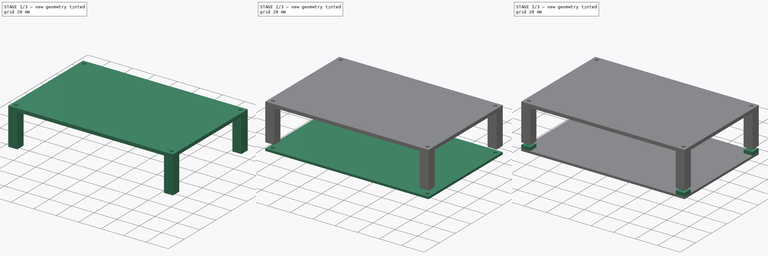
[diagram: build sequence overview — one tinted view per stage of 3, left to right]
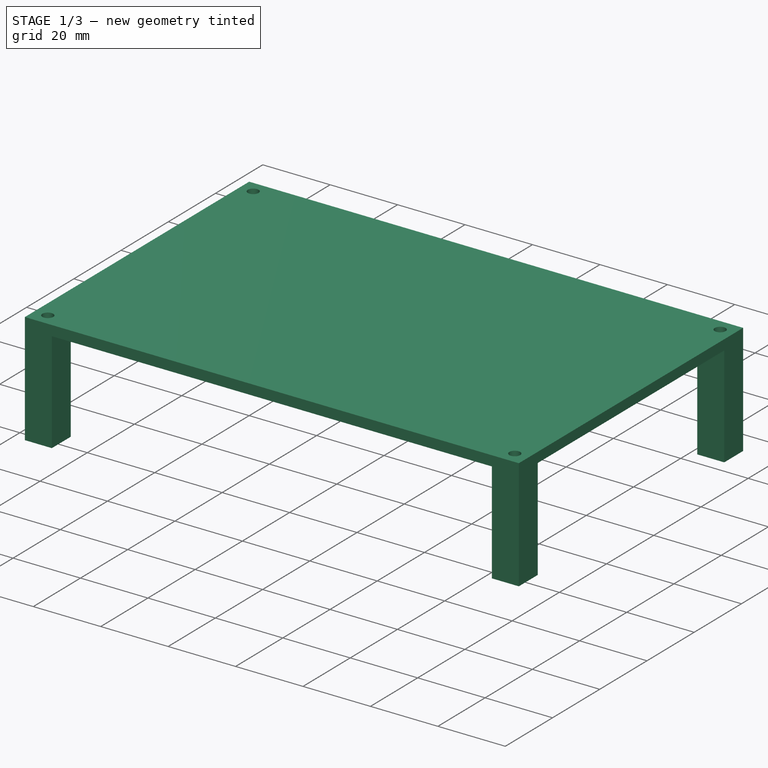
[diagram: stage 1 of 3 — iso view after this stage's code; geometry added in this stage tinted green]
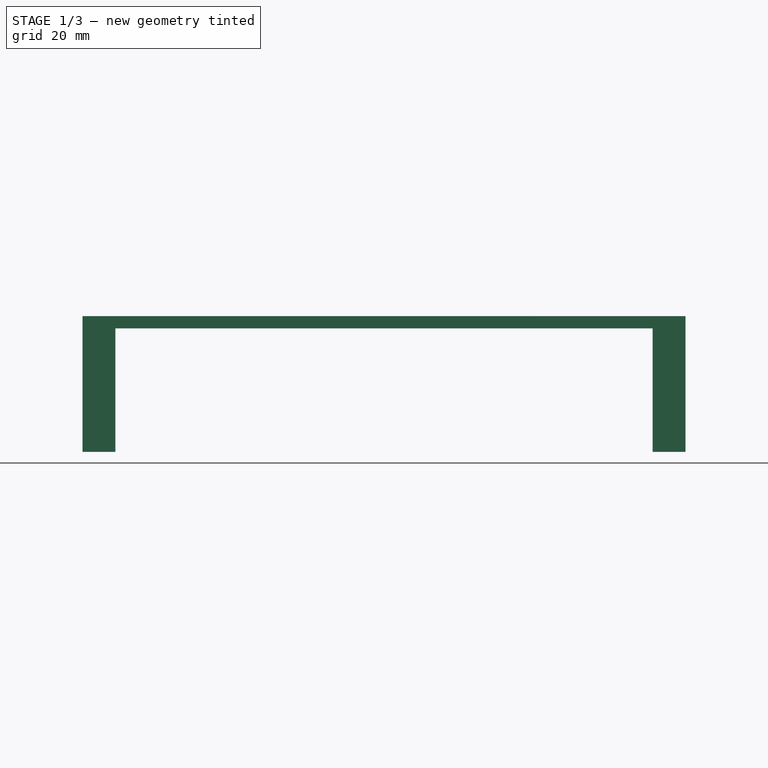
[diagram: stage 1 of 3 — front view after this stage's code; geometry added in this stage tinted green]
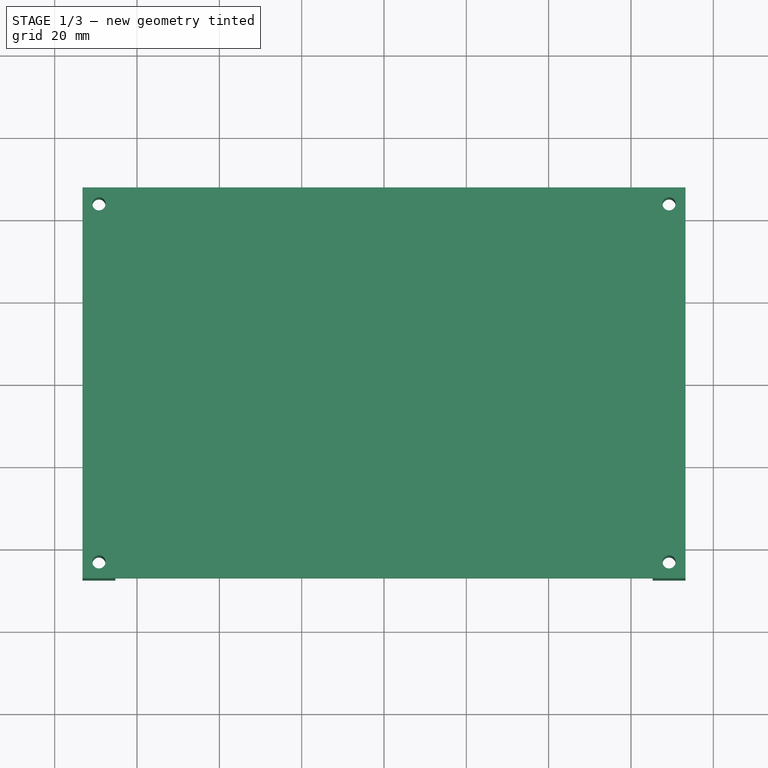
[diagram: stage 1 of 3 — top view after this stage's code; geometry added in this stage tinted green]
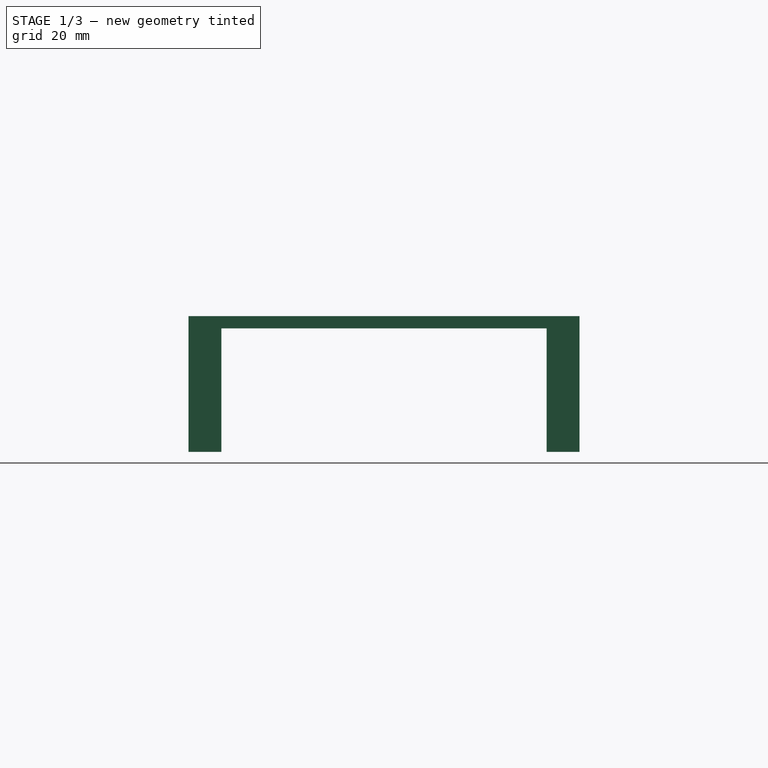
[diagram: stage 1 of 3 — right view after this stage's code; geometry added in this stage tinted green]
FCSTD DOCUMENT  (FreeCAD 0.16R6706 (Git))
Label: Case MKS
License: All rights reserved
LicenseURL: http://en.wikipedia.org/wiki/All_rights_reserved
objects: Sketcher::SketchObject×4, PartDesign::Pad×4, App::DocumentObjectGroup×2, Part::Compound×1
note: 13 computed .brp shape members not serialized (recipe doc carries the construction recipe); baked Part::Feature solids carry a one-line shape summary decoded from their .brp

FEATURE [App::DocumentObjectGroup] Group  label="Base"
  Group = -> [Pad,Pad001]
FEATURE [Sketcher::SketchObject] Sketch002
  Placement = pos=(0,0,40) rot=(1,0,0;3.14159rad)
  sketch-geometry (12):
    g0: LineSegment StartX=-73.25 StartY=47.5 StartZ=0 EndX=73.25 EndY=47.5 EndZ=0
    g1: LineSegment StartX=73.25 StartY=47.5 StartZ=0 EndX=73.25 EndY=-47.5 EndZ=0
    g2: LineSegment StartX=73.25 StartY=-47.5 StartZ=0 EndX=-73.25 EndY=-47.5 EndZ=0
    g3: LineSegment StartX=-73.25 StartY=-47.5 StartZ=0 EndX=-73.25 EndY=47.5 EndZ=0
    g4: LineSegment [constr] StartX=-69.25 StartY=43.5 StartZ=0 EndX=69.25 EndY=43.5 EndZ=0
    g5: LineSegment [constr] StartX=69.25 StartY=43.5 StartZ=0 EndX=69.25 EndY=-43.5 EndZ=0
    g6: LineSegment [constr] StartX=69.25 StartY=-43.5 StartZ=0 EndX=-69.25 EndY=-43.5 EndZ=0
    g7: LineSegment [constr] StartX=-69.25 StartY=-43.5 StartZ=0 EndX=-69.25 EndY=43.5 EndZ=0
    g8: Circle CenterX=-69.25 CenterY=-43.5 CenterZ=0 NormalX=0 NormalY=0 NormalZ=1 Radius=1.6
    g9: Circle CenterX=69.25 CenterY=43.5 CenterZ=0 NormalX=0 NormalY=0 NormalZ=1 Radius=1.6
    g10: Circle CenterX=69.25 CenterY=-43.5 CenterZ=0 NormalX=0 NormalY=0 NormalZ=1 Radius=1.6
    g11: Circle CenterX=-69.25 CenterY=43.5 CenterZ=0 NormalX=0 NormalY=0 NormalZ=1 Radius=1.6
  constraints (30):
    c: Coincident(g0,g1)
    c: Coincident(g1,g2)
    c: Coincident(g2,g3)
    c: Coincident(g3,g0)
    c: Horizontal(g0)
    c: Horizontal(g2)
    c: Vertical(g1)
    c: Vertical(g3)
    c: Symmetric(g2,g0,g-1)
    c: DistanceY(g3,g3) = 95
    c: DistanceX(g0,g0) = 146.5
    c: Coincident(g4,g5)
    c: Coincident(g5,g6)
    c: Coincident(g6,g7)
    c: Coincident(g7,g4)
    c: Horizontal(g4)
    c: Horizontal(g6)
    c: Vertical(g5)
    c: Vertical(g7)
    c: DistanceY(g2,g6) = 4
    c: DistanceX(g2,g6) = 4
    c: Symmetric(g6,g4,g-1)
    c: Radius(g8) = 1.6
    c: Equal(g8,g9) = 1.8
    c: Equal(g8,g10) = 1.8
    c: Equal(g8,g11) = 1.8
    c: Coincident(g4,g11)
    c: Coincident(g8,g6)
    c: Coincident(g5,g10)
    c: Coincident(g4,g9)
FEATURE [PartDesign::Pad] Pad002
  Length = 3
  Length2 = 100
  Placement = pos=(0,0,40) rot=(1,0,0;3.14159rad)
  Sketch = -> Sketch002
  Type = 0
FEATURE [Sketcher::SketchObject] Sketch003
  Placement = pos=(0,0,37) rot=(1,0,0;3.14159rad)
  Support = -> Pad002 [Face10]
  sketch-geometry (20):
    g0: LineSegment StartX=-73.25 StartY=47.5 StartZ=0 EndX=-65.25 EndY=47.5 EndZ=0
    g1: LineSegment StartX=-65.25 StartY=47.5 StartZ=0 EndX=-65.25 EndY=39.5 EndZ=0
    g2: LineSegment StartX=-65.25 StartY=39.5 StartZ=0 EndX=-73.25 EndY=39.5 EndZ=0
    g3: LineSegment StartX=-73.25 StartY=39.5 StartZ=0 EndX=-73.25 EndY=47.5 EndZ=0
    g4: Circle CenterX=-69.25 CenterY=43.5 CenterZ=0 NormalX=0 NormalY=0 NormalZ=1 Radius=1.6
    g5: LineSegment StartX=65.25 StartY=47.5 StartZ=0 EndX=73.25 EndY=47.5 EndZ=0
    g6: LineSegment StartX=73.25 StartY=47.5 StartZ=0 EndX=73.25 EndY=39.5 EndZ=0
    g7: LineSegment StartX=73.25 StartY=39.5 StartZ=0 EndX=65.25 EndY=39.5 EndZ=0
    g8: LineSegment StartX=65.25 StartY=39.5 StartZ=0 EndX=65.25 EndY=47.5 EndZ=0
    g9: Circle CenterX=69.25 CenterY=43.5 CenterZ=0 NormalX=0 NormalY=0 NormalZ=1 Radius=1.6
    g10: LineSegment StartX=65.25 StartY=-39.5 StartZ=0 EndX=73.25 EndY=-39.5 EndZ=0
    g11: LineSegment StartX=73.25 StartY=-39.5 StartZ=0 EndX=73.25 EndY=-47.5 EndZ=0
    g12: LineSegment StartX=73.25 StartY=-47.5 StartZ=0 EndX=65.25 EndY=-47.5 EndZ=0
    g13: LineSegment StartX=65.25 StartY=-47.5 StartZ=0 EndX=65.25 EndY=-39.5 EndZ=0
    g14: Circle CenterX=69.25 CenterY=-43.5 CenterZ=0 NormalX=0 NormalY=0 NormalZ=1 Radius=1.6
    g15: LineSegment StartX=-73.25 StartY=-39.5 StartZ=0 EndX=-65.25 EndY=-39.5 EndZ=0
    g16: LineSegment StartX=-65.25 StartY=-39.5 StartZ=0 EndX=-65.25 EndY=-47.5 EndZ=0
    g17: LineSegment StartX=-65.25 StartY=-47.5 StartZ=0 EndX=-73.25 EndY=-47.5 EndZ=0
    g18: LineSegment StartX=-73.25 StartY=-47.5 StartZ=0 EndX=-73.25 EndY=-39.5 EndZ=0
    g19: Circle CenterX=-69.25 CenterY=-43.5 CenterZ=0 NormalX=0 NormalY=0 NormalZ=1 Radius=1.6
  constraints (48):
    c: Coincident(g0,g1)
    c: Coincident(g1,g2)
    c: Coincident(g2,g3)
    c: Coincident(g3,g0)
    c: Horizontal(g0)
    c: Horizontal(g2)
    c: Vertical(g1)
    c: Vertical(g3)
    c: DistanceX(g0,g0) = 8
    c: DistanceY(g1,g1) = 8
    c: Radius(g4) = 1.6
    c: Symmetric(g2,g0,g4)
    c: Coincident(g5,g6)
    c: Coincident(g6,g7)
    c: Coincident(g7,g8)
    c: Coincident(g8,g5)
    c: Horizontal(g5)
    c: Horizontal(g7)
    c: Vertical(g6)
    c: Vertical(g8)
    c: Equal(g0,g5) = 8
    c: Equal(g1,g6) = 8
    c: Equal(g4,g9) = 1.8
    c: Symmetric(g7,g5,g9)
    c: Coincident(g10,g11)
    c: Coincident(g11,g12)
    c: Coincident(g12,g13)
    c: Coincident(g13,g10)
    c: Horizontal(g10)
    c: Horizontal(g12)
    c: Vertical(g11)
    c: Vertical(g13)
    c: Equal(g0,g10) = 8
    c: Equal(g1,g11) = 8
    c: Equal(g4,g14) = 1.8
    c: Symmetric(g12,g10,g14)
    c: Coincident(g15,g16)
    c: Coincident(g16,g17)
    c: Coincident(g17,g18)
    c: Coincident(g18,g15)
    c: Horizontal(g15)
    c: Horizontal(g17)
    c: Vertical(g16)
    c: Vertical(g18)
    c: Equal(g0,g15) = 8
    c: Equal(g1,g16) = 8
    c: Equal(g4,g19) = 1.8
    c: Symmetric(g17,g15,g19)
FEATURE [PartDesign::Pad] Pad003
  Length = 30
  Length2 = 100
  Placement = pos=(0,0,40) rot=(1,0,0;3.14159rad)
  Sketch = -> Sketch003
  Type = 0
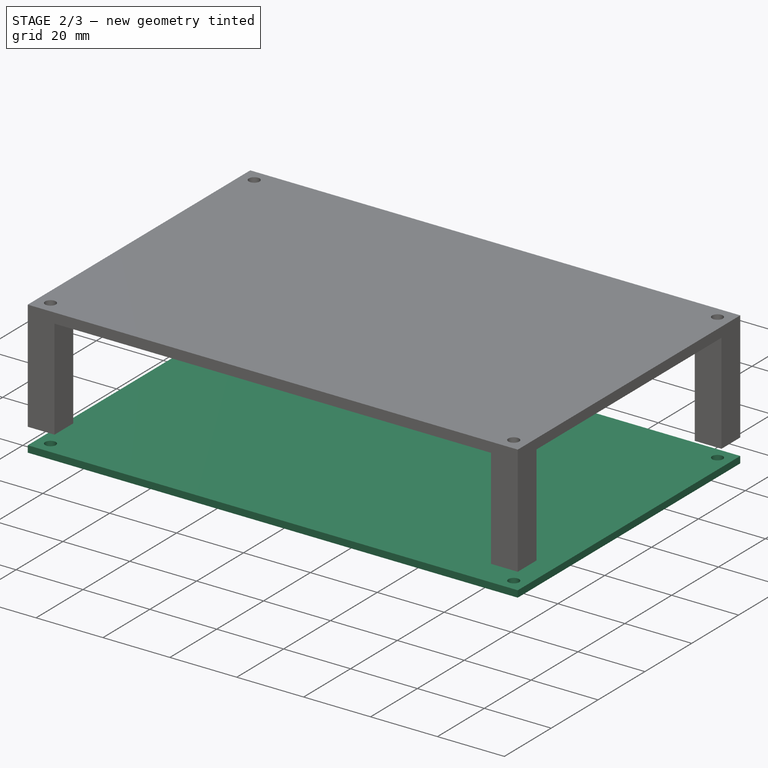
[diagram: stage 2 of 3 — iso view after this stage's code; geometry added in this stage tinted green]
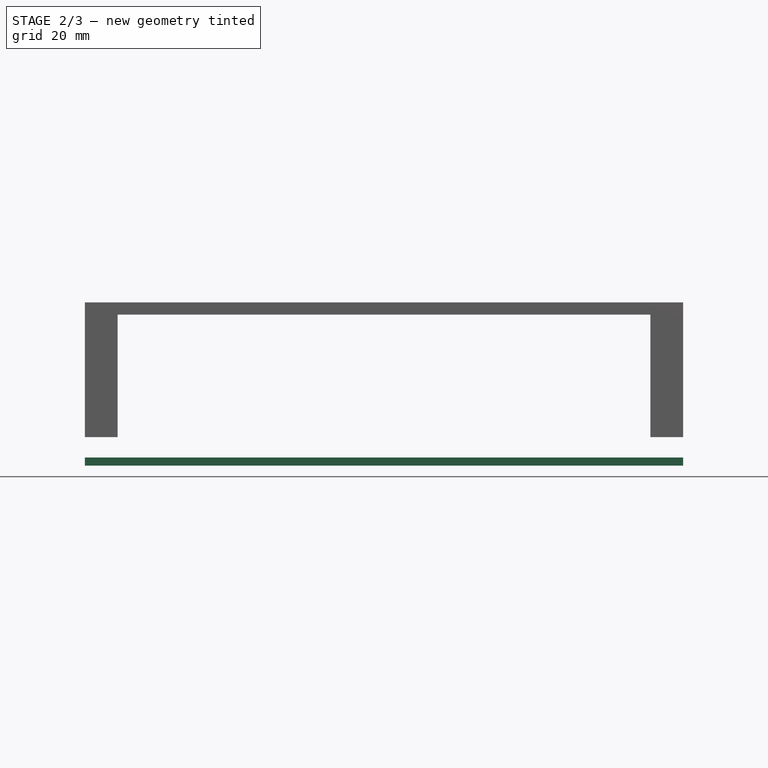
[diagram: stage 2 of 3 — front view after this stage's code; geometry added in this stage tinted green]
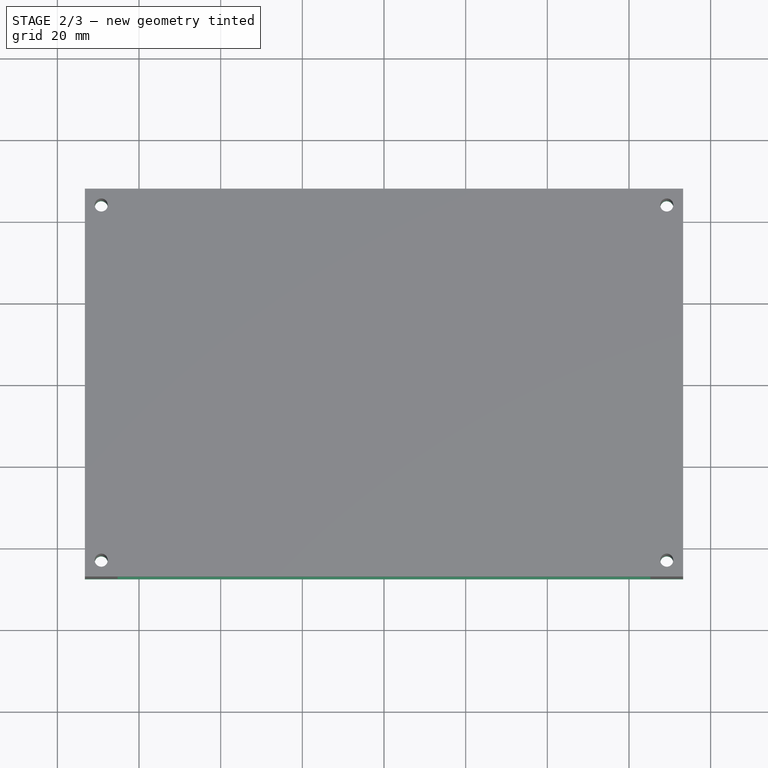
[diagram: stage 2 of 3 — top view after this stage's code; geometry added in this stage tinted green]
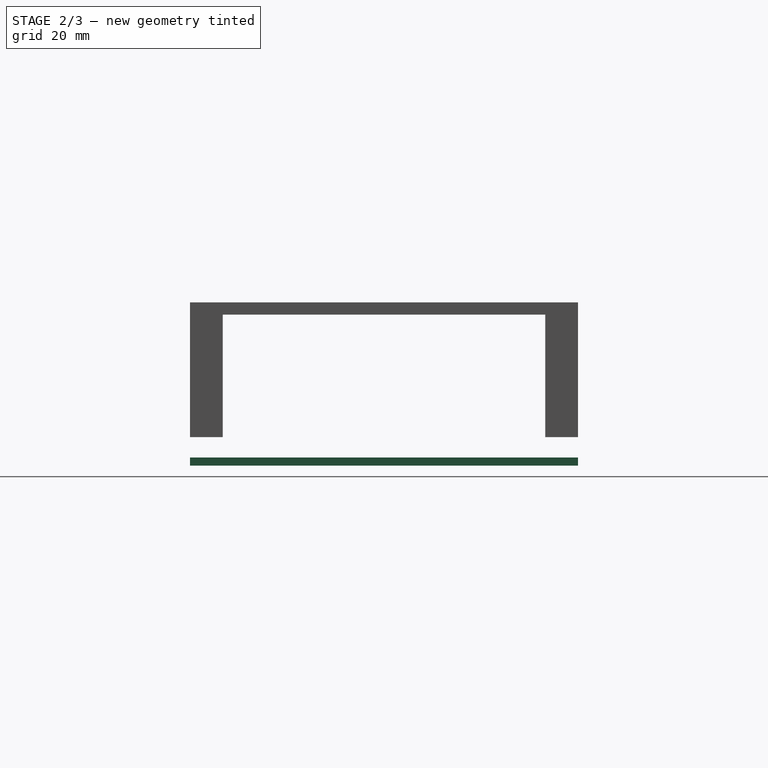
[diagram: stage 2 of 3 — right view after this stage's code; geometry added in this stage tinted green]
FEATURE [Sketcher::SketchObject] Sketch
  sketch-geometry (12):
    g0: LineSegment StartX=-73.25 StartY=47.5 StartZ=0 EndX=73.25 EndY=47.5 EndZ=0
    g1: LineSegment StartX=73.25 StartY=47.5 StartZ=0 EndX=73.25 EndY=-47.5 EndZ=0
    g2: LineSegment StartX=73.25 StartY=-47.5 StartZ=0 EndX=-73.25 EndY=-47.5 EndZ=0
    g3: LineSegment StartX=-73.25 StartY=-47.5 StartZ=0 EndX=-73.25 EndY=47.5 EndZ=0
    g4: LineSegment [constr] StartX=-69.25 StartY=43.5 StartZ=0 EndX=69.25 EndY=43.5 EndZ=0
    g5: LineSegment [constr] StartX=69.25 StartY=43.5 StartZ=0 EndX=69.25 EndY=-43.5 EndZ=0
    g6: LineSegment [constr] StartX=69.25 StartY=-43.5 StartZ=0 EndX=-69.25 EndY=-43.5 EndZ=0
    g7: LineSegment [constr] StartX=-69.25 StartY=-43.5 StartZ=0 EndX=-69.25 EndY=43.5 EndZ=0
    g8: Circle CenterX=-69.25 CenterY=-43.5 CenterZ=0 NormalX=0 NormalY=0 NormalZ=1 Radius=1.6
    g9: Circle CenterX=69.25 CenterY=43.5 CenterZ=0 NormalX=0 NormalY=0 NormalZ=1 Radius=1.6
    g10: Circle CenterX=69.25 CenterY=-43.5 CenterZ=0 NormalX=0 NormalY=0 NormalZ=1 Radius=1.6
    g11: Circle CenterX=-69.25 CenterY=43.5 CenterZ=0 NormalX=0 NormalY=0 NormalZ=1 Radius=1.6
  constraints (32):
    c: Coincident(g0,g1)
    c: Coincident(g1,g2)
    c: Coincident(g2,g3)
    c: Coincident(g3,g0)
    c: Horizontal(g0)
    c: Horizontal(g2)
    c: Vertical(g1)
    c: Vertical(g3)
    c: Symmetric(g2,g0,g-1)
    c: DistanceY(g3,g3) = 95
    c: DistanceX(g0,g0) = 146.5
    c: Coincident(g4,g5)
    c: Coincident(g5,g6)
    c: Coincident(g6,g7)
    c: Coincident(g7,g4)
    c: Horizontal(g4)
    c: Horizontal(g6)
    c: Vertical(g5)
    c: Vertical(g7)
    c: DistanceY(g2,g6) = 4
    c: DistanceX(g2,g6) = 4
    c: Symmetric(g6,g4,g-1)
    c: Radius(g8) = 1.6
    c: Equal(g8,g9) = 1.8
    c: Equal(g8,g10) = 1.8
    c: Equal(g8,g11) = 1.8
    c: Coincident(g4,g11)
    c: Coincident(g8,g6)
    c: Coincident(g5,g10)
    c: Coincident(g4,g9)
    c: DistanceY(g5,g4) = 87
    c: DistanceX(g4,g4) = 138.5
FEATURE [PartDesign::Pad] Pad
  Length = 2
  Length2 = 100
  Sketch = -> Sketch
  Type = 0
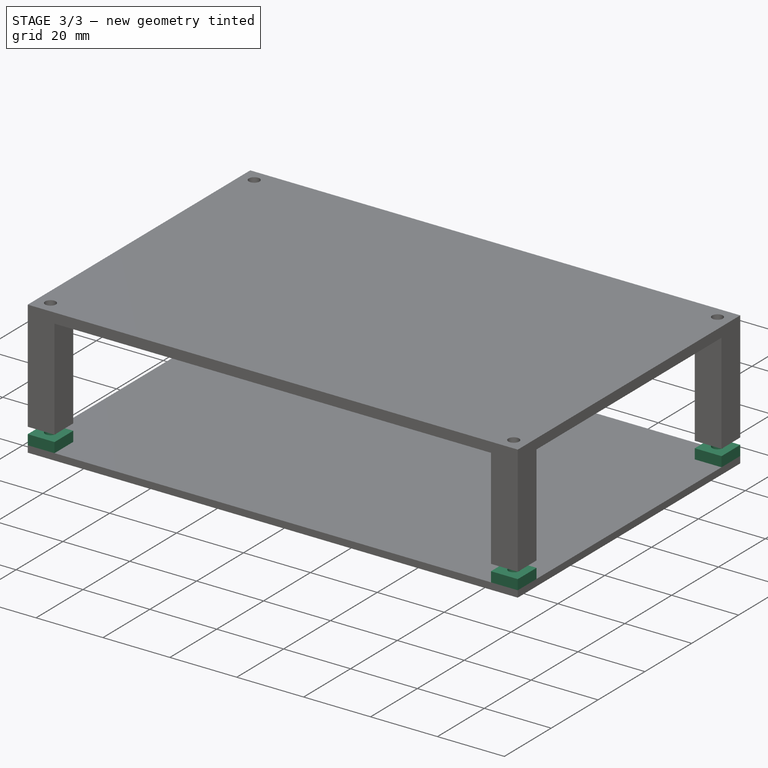
[diagram: stage 3 of 3 — iso view after this stage's code; geometry added in this stage tinted green]
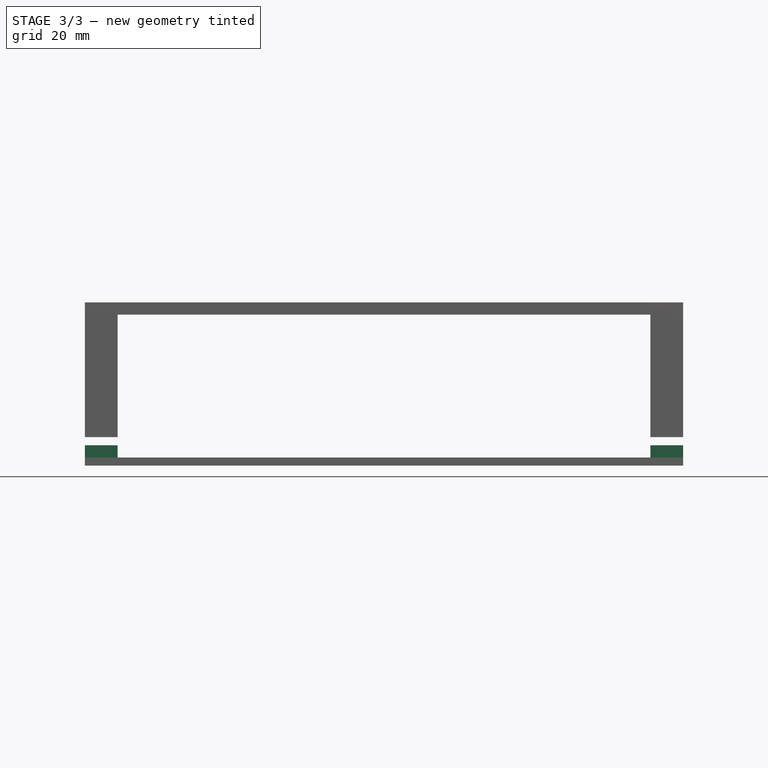
[diagram: stage 3 of 3 — front view after this stage's code; geometry added in this stage tinted green]
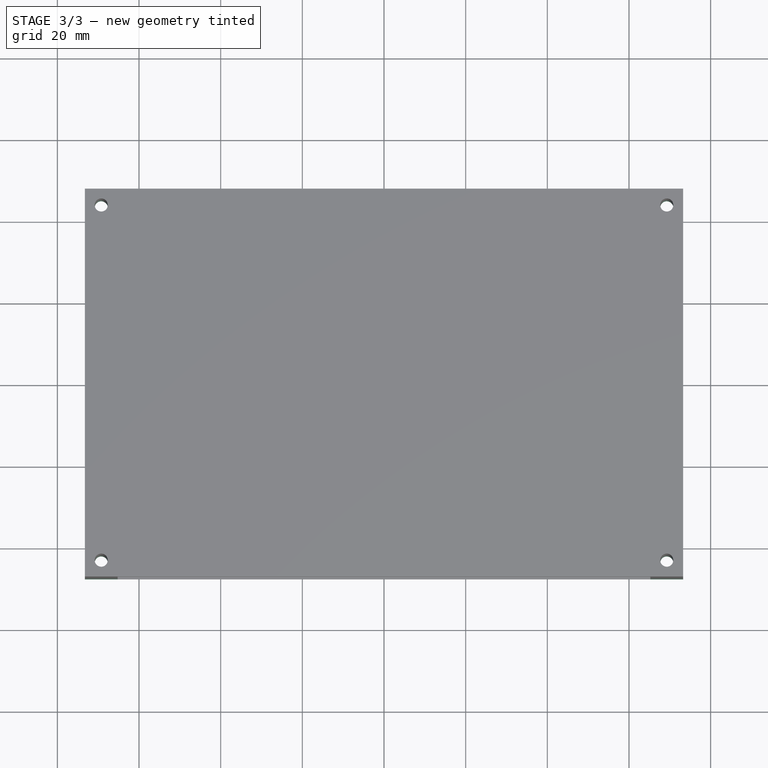
[diagram: stage 3 of 3 — top view after this stage's code; geometry added in this stage tinted green]
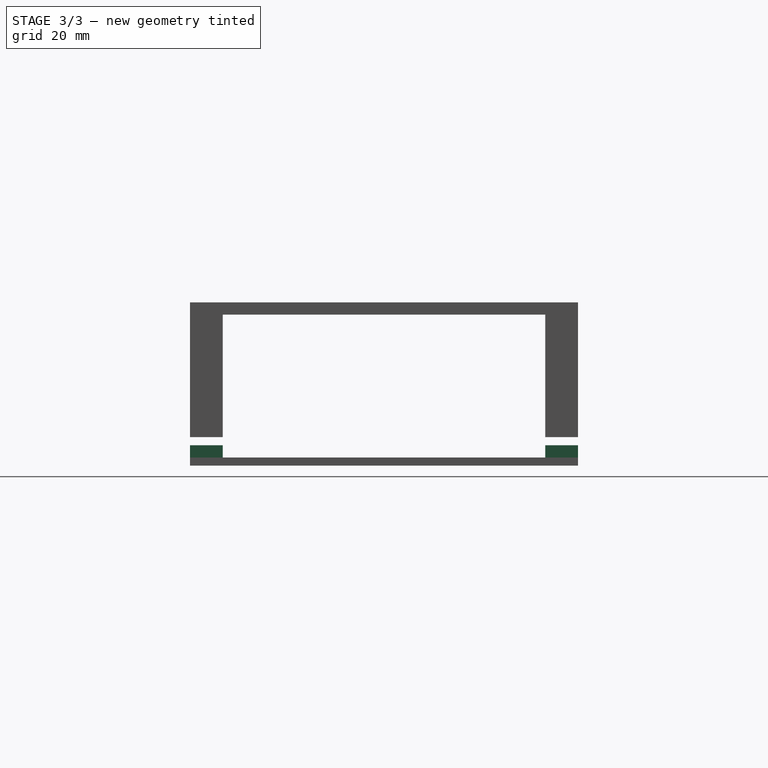
[diagram: stage 3 of 3 — right view after this stage's code; geometry added in this stage tinted green]
FEATURE [Sketcher::SketchObject] Sketch001
  ExternalGeometry = -> [Pad]
  Placement = pos=(0,0,2) rot=(0,0,1;0rad)
  Support = -> Pad [Face10]
  sketch-geometry (20):
    g0: LineSegment StartX=-73.25 StartY=47.5 StartZ=0 EndX=-65.25 EndY=47.5 EndZ=0
    g1: LineSegment StartX=-65.25 StartY=47.5 StartZ=0 EndX=-65.25 EndY=39.5 EndZ=0
    g2: LineSegment StartX=-65.25 StartY=39.5 StartZ=0 EndX=-73.25 EndY=39.5 EndZ=0
    g3: LineSegment StartX=-73.25 StartY=39.5 StartZ=0 EndX=-73.25 EndY=47.5 EndZ=0
    g4: Circle CenterX=-69.25 CenterY=43.5 CenterZ=0 NormalX=0 NormalY=0 NormalZ=1 Radius=1.6
    g5: LineSegment StartX=65.25 StartY=47.5 StartZ=0 EndX=73.25 EndY=47.5 EndZ=0
    g6: LineSegment StartX=73.25 StartY=47.5 StartZ=0 EndX=73.25 EndY=39.5 EndZ=0
    g7: LineSegment StartX=73.25 StartY=39.5 StartZ=0 EndX=65.25 EndY=39.5 EndZ=0
    g8: LineSegment StartX=65.25 StartY=39.5 StartZ=0 EndX=65.25 EndY=47.5 EndZ=0
    g9: Circle CenterX=69.25 CenterY=43.5 CenterZ=0 NormalX=0 NormalY=0 NormalZ=1 Radius=1.6
    g10: LineSegment StartX=65.25 StartY=-39.5 StartZ=0 EndX=73.25 EndY=-39.5 EndZ=0
    g11: LineSegment StartX=73.25 StartY=-39.5 StartZ=0 EndX=73.25 EndY=-47.5 EndZ=0
    g12: LineSegment StartX=73.25 StartY=-47.5 StartZ=0 EndX=65.25 EndY=-47.5 EndZ=0
    g13: LineSegment StartX=65.25 StartY=-47.5 StartZ=0 EndX=65.25 EndY=-39.5 EndZ=0
    g14: Circle CenterX=69.25 CenterY=-43.5 CenterZ=0 NormalX=0 NormalY=0 NormalZ=1 Radius=1.6
    g15: LineSegment StartX=-73.25 StartY=-39.5 StartZ=0 EndX=-65.25 EndY=-39.5 EndZ=0
    g16: LineSegment StartX=-65.25 StartY=-39.5 StartZ=0 EndX=-65.25 EndY=-47.5 EndZ=0
    g17: LineSegment StartX=-65.25 StartY=-47.5 StartZ=0 EndX=-73.25 EndY=-47.5 EndZ=0
    g18: LineSegment StartX=-73.25 StartY=-47.5 StartZ=0 EndX=-73.25 EndY=-39.5 EndZ=0
    g19: Circle CenterX=-69.25 CenterY=-43.5 CenterZ=0 NormalX=0 NormalY=0 NormalZ=1 Radius=1.6
  constraints (52):
    c: Coincident(g0,g1)
    c: Coincident(g1,g2)
    c: Coincident(g2,g3)
    c: Coincident(g3,g0)
    c: Horizontal(g0)
    c: Horizontal(g2)
    c: Vertical(g1)
    c: Vertical(g3)
    c: DistanceX(g0,g0) = 8
    c: DistanceY(g1,g1) = 8
    c: Radius(g4) = 1.6
    c: Symmetric(g2,g0,g4)
    c: Coincident(g5,g6)
    c: Coincident(g6,g7)
    c: Coincident(g7,g8)
    c: Coincident(g8,g5)
    c: Horizontal(g5)
    c: Horizontal(g7)
    c: Vertical(g6)
    c: Vertical(g8)
    c: Equal(g0,g5) = 8
    c: Equal(g1,g6) = 8
    c: Equal(g4,g9) = 1.8
    c: Symmetric(g7,g5,g9)
    c: Coincident(g10,g11)
    c: Coincident(g11,g12)
    c: Coincident(g12,g13)
    c: Coincident(g13,g10)
    c: Horizontal(g10)
    c: Horizontal(g12)
    c: Vertical(g11)
    c: Vertical(g13)
    c: Equal(g0,g10) = 8
    c: Equal(g1,g11) = 8
    c: Equal(g4,g14) = 1.8
    c: Symmetric(g12,g10,g14)
    c: Coincident(g15,g16)
    c: Coincident(g16,g17)
    c: Coincident(g17,g18)
    c: Coincident(g18,g15)
    c: Horizontal(g15)
    c: Horizontal(g17)
    c: Vertical(g16)
    c: Vertical(g18)
    c: Equal(g0,g15) = 8
    c: Equal(g1,g16) = 8
    c: Equal(g4,g19) = 1.8
    c: Symmetric(g17,g15,g19)
    c: Coincident(g17,g-4)
    c: Coincident(g0,g-3)
    c: Coincident(g5,g-3)
    c: Coincident(g11,g-4)
FEATURE [PartDesign::Pad] Pad001
  Length = 3
  Length2 = 100
  Sketch = -> Sketch001
  Type = 0
FEATURE [App::DocumentObjectGroup] Group001  label="Topo"
  Group = -> [Pad002,Pad003]
FEATURE [Part::Compound] Compound
  Links = -> [Pad001,Pad003]
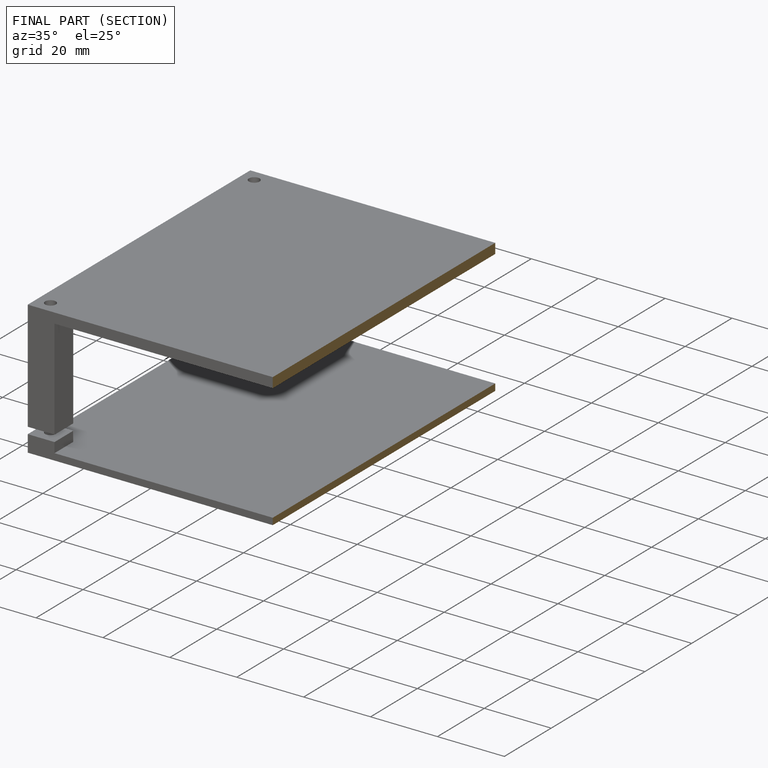
[diagram: finished part — half-section view (interior)]
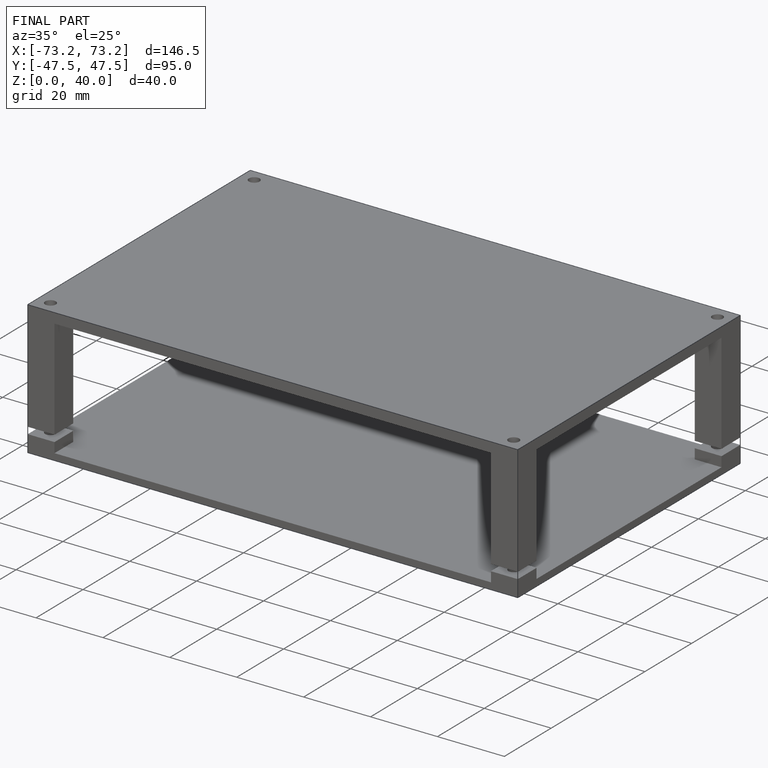
[diagram: finished part — iso view with bounding-box wireframe]
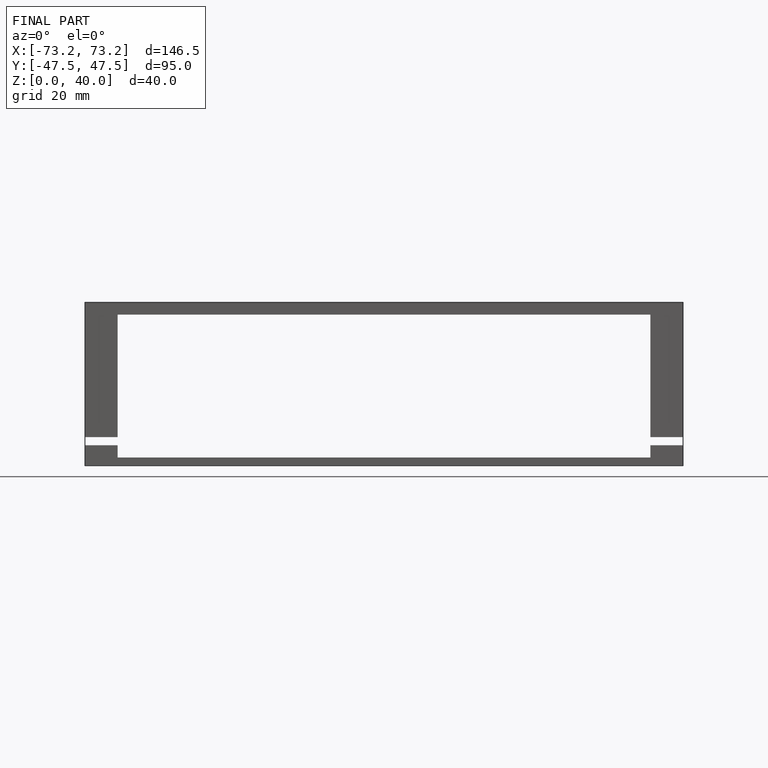
[diagram: finished part — front view with bounding-box wireframe]
